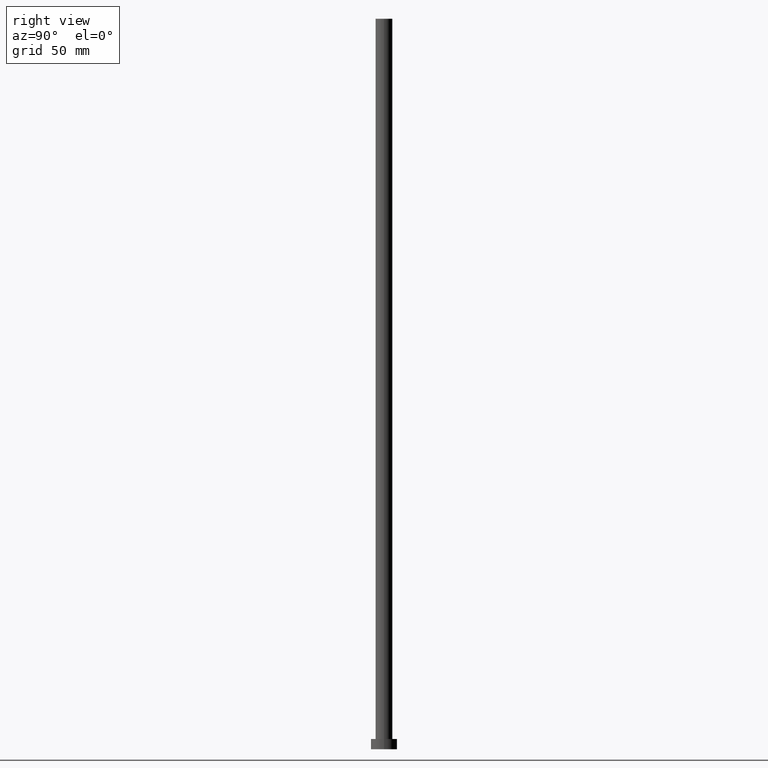
[diagram: clean part render]
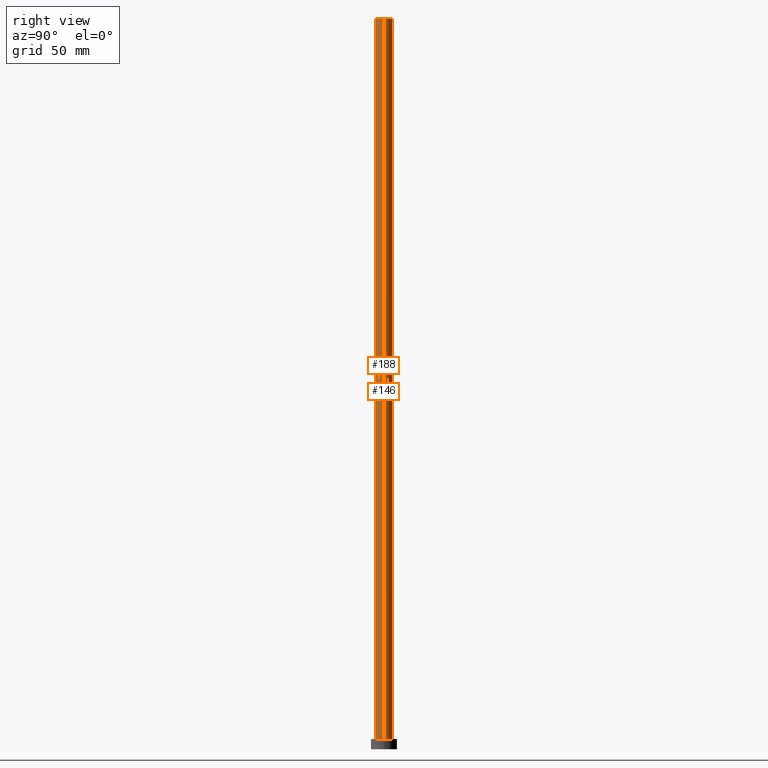
[diagram: same view with one multi-face feature highlighted, each face labeled with its STEP entity id]
A machine part, right view. The highlighted faces form ONE feature: a constant-radius fillet chain: 2 tangent blend faces with common blend radius 5.75 mm. The faces share edges in the B-rep.
Their STEP definitions:
[1] entity #188 (Cylinder):
#6 = FACE_OUTER_BOUND ( 'NONE', #120, .T. ) ;
#8 = AXIS2_PLACEMENT_3D ( 'NONE', #246, #245, #132 ) ;
#17 = VERTEX_POINT ( 'NONE', #98 ) ;
#23 = LINE ( 'NONE', #73, #45 ) ;
#26 = EDGE_CURVE ( 'NONE', #88, #133, #170, .T. ) ;
#40 = ORIENTED_EDGE ( 'NONE', *, *, #214, .T. ) ;
#41 = DIRECTION ( 'NONE',  ( -0.000000000000000000, -0.000000000000000000, -1.000000000000000000 ) ) ;
#45 = VECTOR ( 'NONE', #200, 1000.000000000000000 ) ;
#50 = ORIENTED_EDGE ( 'NONE', *, *, #26, .F. ) ;
#56 = DIRECTION ( 'NONE',  ( 0.000000000000000000, 0.000000000000000000, 1.000000000000000000 ) ) ;
#60 = CARTESIAN_POINT ( 'NONE',  ( -5.750000000000000000, 0.000000000000000000, 500.0000000000000000 ) ) ;
#73 = CARTESIAN_POINT ( 'NONE',  ( -5.750000000000000000, 0.000000000000000000, 500.0000000000000000 ) ) ;
#88 = VERTEX_POINT ( 'NONE', #60 ) ;
#98 = CARTESIAN_POINT ( 'NONE',  ( 5.750000000000000000, 7.041719095097280880E-16, 7.000000000000000000 ) ) ;
#109 = CARTESIAN_POINT ( 'NONE',  ( 5.750000000000000000, 7.041719095097280880E-16, 500.0000000000000000 ) ) ;
#117 = ORIENTED_EDGE ( 'NONE', *, *, #232, .T. ) ;
#120 = EDGE_LOOP ( 'NONE', ( #172, #50, #40, #117 ) ) ;
#121 = VECTOR ( 'NONE', #41, 1000.000000000000000 ) ;
#123 = CARTESIAN_POINT ( 'NONE',  ( 0.000000000000000000, 0.000000000000000000, 7.000000000000000000 ) ) ;
#125 = CARTESIAN_POINT ( 'NONE',  ( 5.750000000000000000, 7.041719095097280880E-16, 500.0000000000000000 ) ) ;
#132 = DIRECTION ( 'NONE',  ( 1.000000000000000000, 0.000000000000000000, 0.000000000000000000 ) ) ;
#133 = VERTEX_POINT ( 'NONE', #109 ) ;
#141 = AXIS2_PLACEMENT_3D ( 'NONE', #123, #56, #247 ) ;
#147 = LINE ( 'NONE', #125, #121 ) ;
#162 = DIRECTION ( 'NONE',  ( -0.000000000000000000, -0.000000000000000000, -1.000000000000000000 ) ) ;
#170 = CIRCLE ( 'NONE', #8, 5.750000000000000000 ) ;
#172 = ORIENTED_EDGE ( 'NONE', *, *, #225, .F. ) ;
#183 = CYLINDRICAL_SURFACE ( 'NONE', #189, 5.750000000000000000 ) ;
#188 = ADVANCED_FACE ( 'NONE', ( #6 ), #183, .T. ) ;
#189 = AXIS2_PLACEMENT_3D ( 'NONE', #243, #162, #236 ) ;
#200 = DIRECTION ( 'NONE',  ( -0.000000000000000000, -0.000000000000000000, -1.000000000000000000 ) ) ;
#214 = EDGE_CURVE ( 'NONE', #88, #224, #23, .T. ) ;
#224 = VERTEX_POINT ( 'NONE', #238 ) ;
#225 = EDGE_CURVE ( 'NONE', #133, #17, #147, .T. ) ;
#227 = CIRCLE ( 'NONE', #141, 5.750000000000000000 ) ;
#232 = EDGE_CURVE ( 'NONE', #224, #17, #227, .T. ) ;
#236 = DIRECTION ( 'NONE',  ( -1.000000000000000000, 0.000000000000000000, 0.000000000000000000 ) ) ;
#238 = CARTESIAN_POINT ( 'NONE',  ( -5.750000000000000000, 0.000000000000000000, 7.000000000000000000 ) ) ;
#243 = CARTESIAN_POINT ( 'NONE',  ( 0.000000000000000000, 0.000000000000000000, 500.0000000000000000 ) ) ;
#245 = DIRECTION ( 'NONE',  ( 0.000000000000000000, 0.000000000000000000, 1.000000000000000000 ) ) ;
#246 = CARTESIAN_POINT ( 'NONE',  ( 0.000000000000000000, 0.000000000000000000, 500.0000000000000000 ) ) ;
#247 = DIRECTION ( 'NONE',  ( 1.000000000000000000, 0.000000000000000000, 0.000000000000000000 ) ) ;
[2] entity #146 (Cylinder):
#17 = VERTEX_POINT ( 'NONE', #98 ) ;
#18 = DIRECTION ( 'NONE',  ( 0.000000000000000000, 0.000000000000000000, 1.000000000000000000 ) ) ;
#19 = CARTESIAN_POINT ( 'NONE',  ( 0.000000000000000000, 0.000000000000000000, 500.0000000000000000 ) ) ;
#23 = LINE ( 'NONE', #73, #45 ) ;
#41 = DIRECTION ( 'NONE',  ( -0.000000000000000000, -0.000000000000000000, -1.000000000000000000 ) ) ;
#44 = DIRECTION ( 'NONE',  ( -0.000000000000000000, -0.000000000000000000, -1.000000000000000000 ) ) ;
#45 = VECTOR ( 'NONE', #200, 1000.000000000000000 ) ;
#60 = CARTESIAN_POINT ( 'NONE',  ( -5.750000000000000000, 0.000000000000000000, 500.0000000000000000 ) ) ;
#73 = CARTESIAN_POINT ( 'NONE',  ( -5.750000000000000000, 0.000000000000000000, 500.0000000000000000 ) ) ;
#74 = CIRCLE ( 'NONE', #131, 5.750000000000000000 ) ;
#81 = ORIENTED_EDGE ( 'NONE', *, *, #214, .F. ) ;
#88 = VERTEX_POINT ( 'NONE', #60 ) ;
#92 = AXIS2_PLACEMENT_3D ( 'NONE', #137, #148, #167 ) ;
#97 = ORIENTED_EDGE ( 'NONE', *, *, #110, .T. ) ;
#98 = CARTESIAN_POINT ( 'NONE',  ( 5.750000000000000000, 7.041719095097280880E-16, 7.000000000000000000 ) ) ;
#109 = CARTESIAN_POINT ( 'NONE',  ( 5.750000000000000000, 7.041719095097280880E-16, 500.0000000000000000 ) ) ;
#110 = EDGE_CURVE ( 'NONE', #17, #224, #74, .T. ) ;
#121 = VECTOR ( 'NONE', #41, 1000.000000000000000 ) ;
#125 = CARTESIAN_POINT ( 'NONE',  ( 5.750000000000000000, 7.041719095097280880E-16, 500.0000000000000000 ) ) ;
#129 = FACE_OUTER_BOUND ( 'NONE', #149, .T. ) ;
#131 = AXIS2_PLACEMENT_3D ( 'NONE', #196, #18, #213 ) ;
#133 = VERTEX_POINT ( 'NONE', #109 ) ;
#137 = CARTESIAN_POINT ( 'NONE',  ( 0.000000000000000000, 0.000000000000000000, 500.0000000000000000 ) ) ;
#142 = ORIENTED_EDGE ( 'NONE', *, *, #225, .T. ) ;
#144 = AXIS2_PLACEMENT_3D ( 'NONE', #19, #44, #197 ) ;
#146 = ADVANCED_FACE ( 'NONE', ( #129 ), #216, .T. ) ;
#147 = LINE ( 'NONE', #125, #121 ) ;
#148 = DIRECTION ( 'NONE',  ( 0.000000000000000000, 0.000000000000000000, 1.000000000000000000 ) ) ;
#149 = EDGE_LOOP ( 'NONE', ( #210, #142, #97, #81 ) ) ;
#153 = CIRCLE ( 'NONE', #92, 5.750000000000000000 ) ;
#167 = DIRECTION ( 'NONE',  ( 1.000000000000000000, 0.000000000000000000, 0.000000000000000000 ) ) ;
#193 = EDGE_CURVE ( 'NONE', #133, #88, #153, .T. ) ;
#196 = CARTESIAN_POINT ( 'NONE',  ( 0.000000000000000000, 0.000000000000000000, 7.000000000000000000 ) ) ;
#197 = DIRECTION ( 'NONE',  ( -1.000000000000000000, 0.000000000000000000, 0.000000000000000000 ) ) ;
#200 = DIRECTION ( 'NONE',  ( -0.000000000000000000, -0.000000000000000000, -1.000000000000000000 ) ) ;
#210 = ORIENTED_EDGE ( 'NONE', *, *, #193, .F. ) ;
#213 = DIRECTION ( 'NONE',  ( 1.000000000000000000, 0.000000000000000000, 0.000000000000000000 ) ) ;
#214 = EDGE_CURVE ( 'NONE', #88, #224, #23, .T. ) ;
#216 = CYLINDRICAL_SURFACE ( 'NONE', #144, 5.750000000000000000 ) ;
#224 = VERTEX_POINT ( 'NONE', #238 ) ;
#225 = EDGE_CURVE ( 'NONE', #133, #17, #147, .T. ) ;
#238 = CARTESIAN_POINT ( 'NONE',  ( -5.750000000000000000, 0.000000000000000000, 7.000000000000000000 ) ) ;